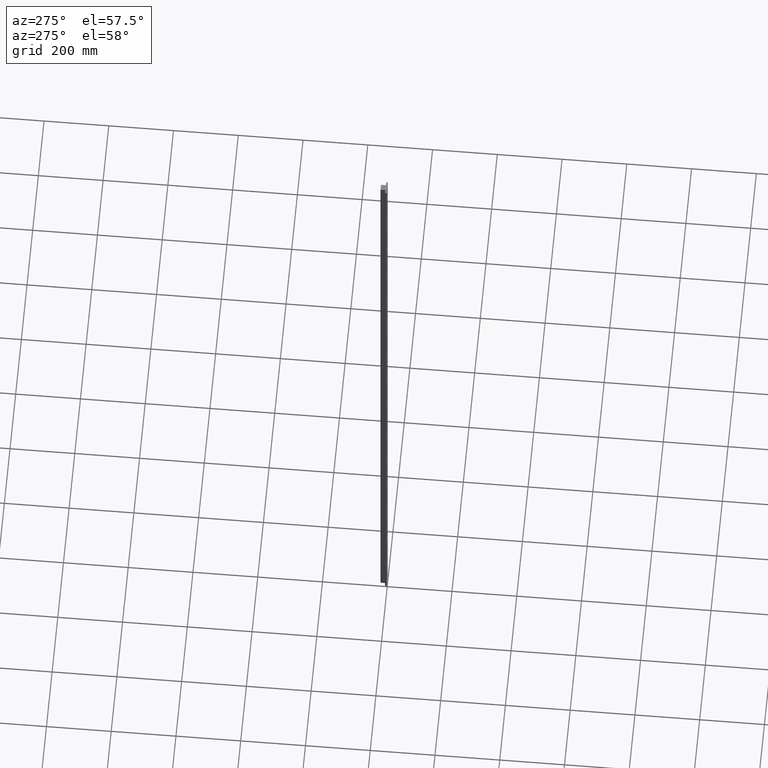
[diagram: clean part render]
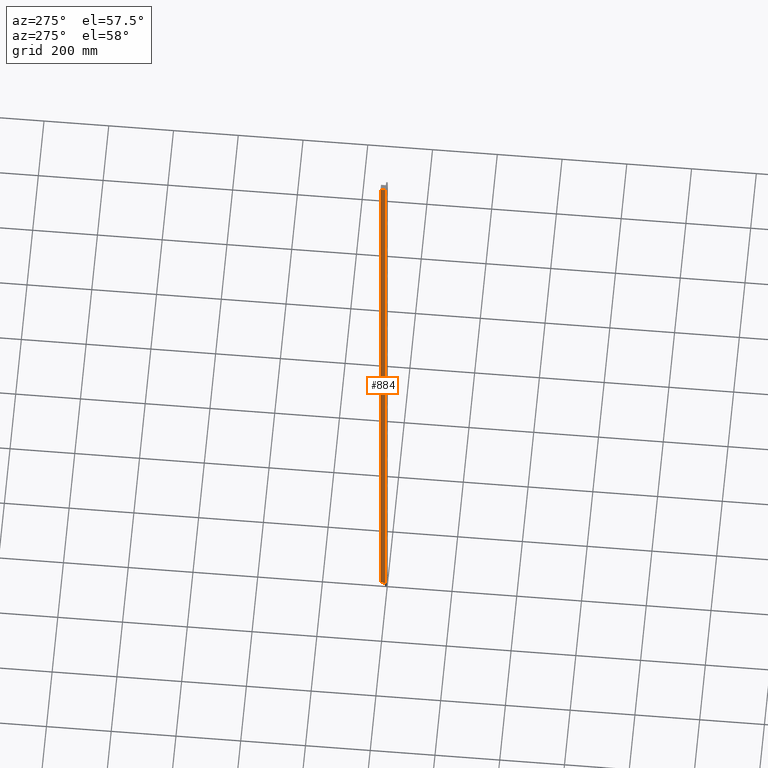
[diagram: same view with one face highlighted and labeled with its STEP entity id]
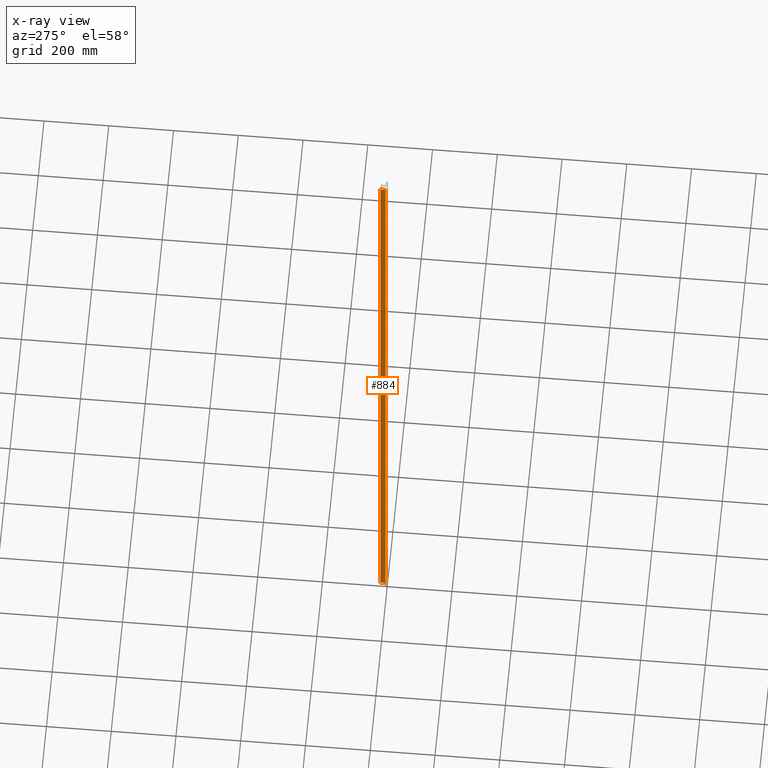
[diagram: x-ray of the same camera — body ghosted, the highlighted face saturated]
A machine part, auxiliary view. The second image highlights one B-rep face of the part: STEP entity #884.
The next image is the same camera in x-ray: the body ghosted, the highlighted face saturated — about 0% of this face is hidden behind the body in this view.
In plain terms, the highlighted planar face has unit normal (-1, -0, 0).
Its self-contained STEP definition (entity closure, byte-faithful):
#74 = EDGE_CURVE ( 'NONE', #1312, #2414, #1899, .T. ) ;
#103 = CARTESIAN_POINT ( 'NONE',  ( -8.999999999999998200, 5.000000000000001800, 0.0000000000000000000 ) ) ;
#185 = CARTESIAN_POINT ( 'NONE',  ( -8.999999999999998200, 5.000000000000001800, -2250.000000000000000 ) ) ;
#279 = CARTESIAN_POINT ( 'NONE',  ( -8.999999999999998200, 5.000000000000001800, -2250.000000000000000 ) ) ;
#305 = FACE_OUTER_BOUND ( 'NONE', #827, .T. ) ;
#411 = DIRECTION ( 'NONE',  ( -1.000000000000000000, -2.312964634635742500E-016, 0.0000000000000000000 ) ) ;
#453 = CARTESIAN_POINT ( 'NONE',  ( -8.999999999999998200, 5.000000000000001800, -2250.000000000000000 ) ) ;
#693 = LINE ( 'NONE', #279, #1823 ) ;
#770 = VECTOR ( 'NONE', #1329, 1000.000000000000000 ) ;
#779 = ORIENTED_EDGE ( 'NONE', *, *, #74, .F. ) ;
#827 = EDGE_LOOP ( 'NONE', ( #779, #980, #2756, #828 ) ) ;
#828 = ORIENTED_EDGE ( 'NONE', *, *, #2304, .T. ) ;
#884 = ADVANCED_FACE ( 'NONE', ( #305 ), #2573, .T. ) ;
#980 = ORIENTED_EDGE ( 'NONE', *, *, #2380, .F. ) ;
#1099 = VECTOR ( 'NONE', #1613, 1000.000000000000000 ) ;
#1229 = VERTEX_POINT ( 'NONE', #1459 ) ;
#1241 = CARTESIAN_POINT ( 'NONE',  ( -8.999999999999998200, 5.000000000000001800, -2250.000000000000000 ) ) ;
#1284 = AXIS2_PLACEMENT_3D ( 'NONE', #185, #411, #1911 ) ;
#1312 = VERTEX_POINT ( 'NONE', #2101 ) ;
#1329 = DIRECTION ( 'NONE',  ( 2.312964634635742500E-016, -1.000000000000000000, -0.0000000000000000000 ) ) ;
#1459 = CARTESIAN_POINT ( 'NONE',  ( -9.000000000000001800, 20.00000000000000400, -2250.000000000000000 ) ) ;
#1534 = VECTOR ( 'NONE', #2711, 1000.000000000000000 ) ;
#1566 = EDGE_CURVE ( 'NONE', #1229, #2238, #2564, .T. ) ;
#1579 = DIRECTION ( 'NONE',  ( 0.0000000000000000000, 0.0000000000000000000, 1.000000000000000000 ) ) ;
#1613 = DIRECTION ( 'NONE',  ( 0.0000000000000000000, 0.0000000000000000000, 1.000000000000000000 ) ) ;
#1763 = LINE ( 'NONE', #2298, #1099 ) ;
#1823 = VECTOR ( 'NONE', #1579, 1000.000000000000000 ) ;
#1899 = LINE ( 'NONE', #103, #1534 ) ;
#1911 = DIRECTION ( 'NONE',  ( 2.312964634635742500E-016, -1.000000000000000000, 0.0000000000000000000 ) ) ;
#2101 = CARTESIAN_POINT ( 'NONE',  ( -9.000000000000001800, 20.00000000000000400, 0.0000000000000000000 ) ) ;
#2238 = VERTEX_POINT ( 'NONE', #1241 ) ;
#2298 = CARTESIAN_POINT ( 'NONE',  ( -9.000000000000001800, 20.00000000000000400, -2250.000000000000000 ) ) ;
#2304 = EDGE_CURVE ( 'NONE', #2238, #2414, #693, .T. ) ;
#2380 = EDGE_CURVE ( 'NONE', #1229, #1312, #1763, .T. ) ;
#2414 = VERTEX_POINT ( 'NONE', #2805 ) ;
#2564 = LINE ( 'NONE', #453, #770 ) ;
#2573 = PLANE ( 'NONE',  #1284 ) ;
#2711 = DIRECTION ( 'NONE',  ( 2.312964634635742500E-016, -1.000000000000000000, -0.0000000000000000000 ) ) ;
#2756 = ORIENTED_EDGE ( 'NONE', *, *, #1566, .T. ) ;
#2805 = CARTESIAN_POINT ( 'NONE',  ( -8.999999999999998200, 5.000000000000001800, 0.0000000000000000000 ) ) ;